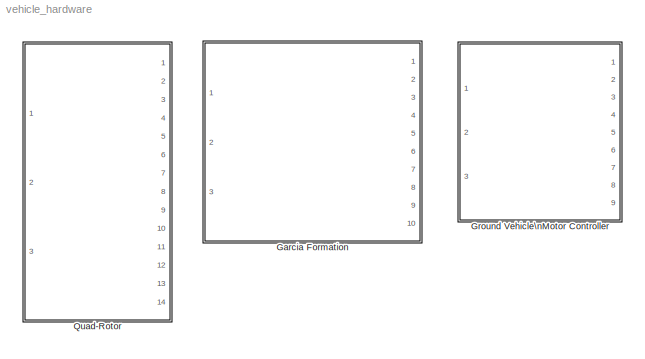
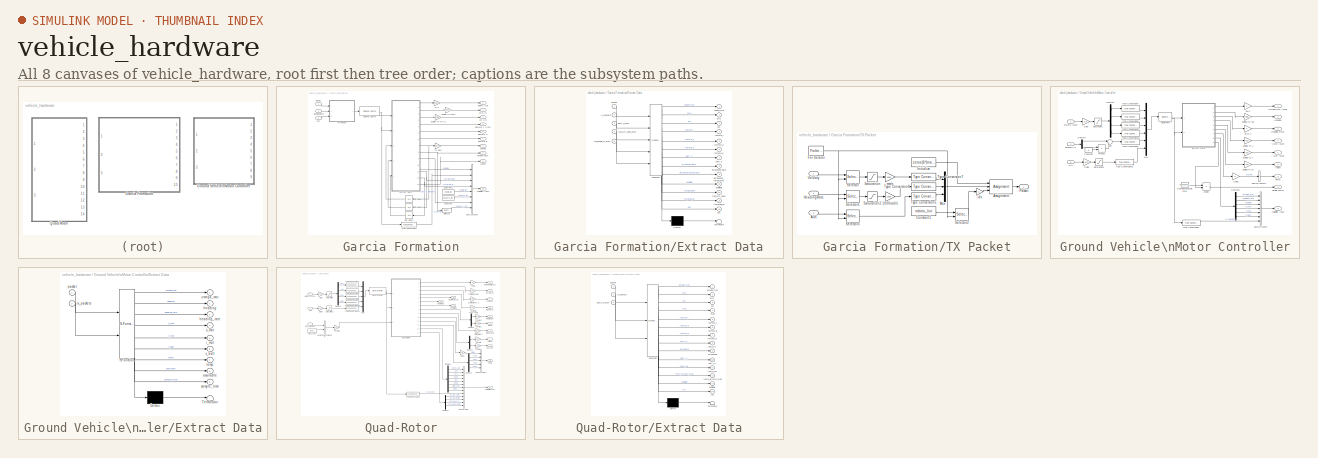
[diagram: thumbnail index - all 8 canvases of the model, root first then tree order]
MODEL vehicle_hardware
KIND model
BLOCK [SubSystem] Garcia Formation
  FunctionWithSeparateData = off
  MaskCallbackString = |||start = 3;\nUAVdesign_net_generic_comm_callback(gcb, 1, start)|||||||
  MaskDescription = Hardware interface for the Garcia & Track robot formation.\n\nIf Timeout is zero, the block will not delay the simulation until the data packets arrive. If Timeout is positive and no packet arrives until it elapses, an error will be generated and the simulation will stop.
  MaskDisplay = text(0.1, 0.30, ['sensors: ' num2str(sensors_list)])\ntext(0.1, 0.40, ['robots: ' num2str(robots_list)])\ntext(0.1, 0.70, com_port)\ntext(0.1, 0.60, host_name)
  MaskEnableString = on,on,on,on,on,on,on,on,on,on,on
  MaskHideContents = off
  MaskIconFrame = on
  MaskIconOpaque = off
  MaskIconRotate = none
  MaskIconUnits = normalized
  MaskInitialization = start = 3;\na=get_param([gcb '/Generic Comm'], 'MaskStyles');\nb=get_param(gcb, 'MaskStyles');\nb{start+1}=a{1};\nset_param(gcb, 'MaskStyles', b);\n\na=get_param(gcb, 'MaskValues');\nb=get_param([gcb '/Generic Comm'], 'MaskValues');\nb{1}=a{start+1};\nset_param([gcb '/Generic Comm'], 'MaskValues', b);
  MaskPortRotate = default
  MaskPromptString = List of robots|List of ultrasound+radio sensors|Use ultrasound sensors|Device Type|COM port (string between commas, e.g. 'COM4')|Baud Rate|Host Name (string between commas, e.g. '192.168.1.10')|Remote UDP port|Local UDP port|Timeout (sec)|Sample Time
  MaskSelfModifiable = on
  MaskStyleString = edit,edit,checkbox,popup(COM port|UDP port),edit,edit,edit,edit,edit,edit,edit
  MaskToolTipString = on,on,on,on,on,on,on,on,on,on,on
  MaskTunableValueString = off,off,off,off,off,off,off,off,off,off,off
  MaskType = GarciaFormation
  MaskValueString = [0 1 2 3]|[0 1 2 3]|off|UDP port|'COM4'|115200|'192.168.1.10'|60500|60500|1|1/20
  MaskVariables = robots_list=@1;sensors_list=@2;use_sensors=@3;devicetype=@4;com_port=@5;baud=@6;host_name=@7;remote_port=@8;local_port=@9;timeout=@10;sample_time=@11;
  MaskVisibilityString = on,on,on,on,off,off,on,on,on,on,on
  MinAlgLoopOccurrences = off
  Opaque = off
  Ports = [3, 10]
  PropExecContextOutsideSubsystem = off
  RTWSystemCode = Auto
  RequestExecContextInheritance = off
  SID = 252
  ShowPortLabels = FromPortBlockName
BLOCK [Inport] Garcia Formation/AUX
  IconDisplay = Port number
  Port = 3
  SID = 252:1352
  SignalType = real
BLOCK [Outport] Garcia Formation/AUXout
  IconDisplay = Port number
  Port = 5
  SID = 252:1353
  SignalType = real
BLOCK [Outport] Garcia Formation/Acc [xy]
  IconDisplay = Port number
  Port = 3
  SID = 252:457
  SignalType = real
BLOCK [Outport] Garcia Formation/Availability (bus)
  IconDisplay = Port number
  Port = 10
  SID = 252:463
  SignalType = real
BLOCK [BusCreator] Garcia Formation/Bus\nCreator
  DisplayOption = bar
  Inputs = 8
  Ports = [8, 1]
  SID = 252:422
BLOCK [Constant] Garcia Formation/Constant
  SID = 252:423
  Value = sensors_list
BLOCK [Constant] Garcia Formation/Constant1
  SID = 252:424
  Value = robots_list
BLOCK [SubSystem] Garcia Formation/Extract Data
  ErrorFcn = Stateflow.Translate.translate
  FunctionWithSeparateData = off
  MaskDescription = Embedded MATLAB block
  MaskDisplay = bgColor = Simulink.Root.ColorString2Rgb(get_param(gcbh, 'BackgroundColor')); image(imread('private/eml_membrane_16.png','png','BackgroundColor',bgColor(1:3)),'center'); disp([10 10 'unpack']);  <repeated x3 — deduplicated; at blocks: Extract Data>
  MaskHideContents = off
  MaskIconFrame = on
  MaskIconOpaque = off
  MaskIconRotate = none
  MaskIconUnits = normalized
  MaskPortRotate = default
  MaskSelfModifiable = on
  MaskType = Stateflow
  MinAlgLoopOccurrences = off
  Opaque = off
  PermitHierarchicalResolution = ExplicitOnly
  Ports = [5, 13]
  PropExecContextOutsideSubsystem = off
  RTWSystemCode = Auto
  RequestExecContextInheritance = off
  SID = 252:425
  TreatAsAtomicUnit = on
BLOCK [Demux] Garcia Formation/Extract Data/ Demux 
  Outputs = 1
  Ports = [1, 1]
  SID = 252:425::40
BLOCK [S-Function] Garcia Formation/Extract Data/ SFunction 
  EnableBusSupport = off
  FunctionName = sf_sfun
  Parameters = robots_list,sensors_list,use_sensors
  PortCounts = [5 14]
  Ports = [5, 14]
  SID = 252:425::39
  Tag = Stateflow S-Function vehicle_hardware 1
BLOCK [Terminator] Garcia Formation/Extract Data/ Terminator 
  SID = 252:425::42
BLOCK [Outport] Garcia Formation/Extract Data/acc
  IconDisplay = Port number
  Port = 3
  SID = 252:425::11
BLOCK [Outport] Garcia Formation/Extract Data/aux
  IconDisplay = Port number
  Port = 13
  SID = 252:425::30
BLOCK [Outport] Garcia Formation/Extract Data/available
  IconDisplay = Port number
  Port = 10
  SID = 252:425::18
BLOCK [Outport] Garcia Formation/Extract Data/batt_V
  IconDisplay = Port number
  Port = 7
  SID = 252:425::15
BLOCK [Inport] Garcia Formation/Extract Data/batt_V_prev
  IconDisplay = Port number
  Port = 3
  SID = 252:425::3
BLOCK [Outport] Garcia Formation/Extract Data/gyro
  IconDisplay = Port number
  Port = 2
  SID = 252:425::10
BLOCK [Inport] Garcia Formation/Extract Data/packet
  IconDisplay = Port number
  SID = 252:425::1
BLOCK [Outport] Garcia Formation/Extract Data/remote_b
  IconDisplay = Port number
  Port = 6
  SID = 252:425::14
BLOCK [Outport] Garcia Formation/Extract Data/remote_j
  IconDisplay = Port number
  Port = 4
  SID = 252:425::12
BLOCK [Outport] Garcia Formation/Extract Data/remote_q
  IconDisplay = Port number
  Port = 5
  SID = 252:425::13
BLOCK [Outport] Garcia Formation/Extract Data/rssi_BASE_qr
  IconDisplay = Port number
  Port = 12
  SID = 252:425::20
BLOCK [Inport] Garcia Formation/Extract Data/rssi_BASE_qr_prev
  IconDisplay = Port number
  Port = 5
  SID = 252:425::5
BLOCK [Outport] Garcia Formation/Extract Data/rssi_QR_base
  IconDisplay = Port number
  Port = 11
  SID = 252:425::19
BLOCK [Inport] Garcia Formation/Extract Data/rssi_QR_base_prev
  IconDisplay = Port number
  Port = 4
  SID = 252:425::4
BLOCK [Inport] Garcia Formation/Extract Data/rx_packets
  IconDisplay = Port number
  Port = 2
  SID = 252:425::2
BLOCK [Outport] Garcia Formation/Extract Data/speed_mot
  IconDisplay = Port number
  SID = 252:425::9
BLOCK [Outport] Garcia Formation/Extract Data/ultrasound_data
  IconDisplay = Port number
  Port = 8
  SID = 252:425::16
BLOCK [Outport] Garcia Formation/Extract Data/ultrasound_timestamp
  IconDisplay = Port number
  Port = 9
  SID = 252:425::17
BLOCK [Reference] Garcia Formation/Generic Comm  REF=UAVdesign_net/Hardware/Generic Comm
  FunctionWithSeparateData = off
  GeneratePreprocessorConditionals = off
  Ports = [1, 2]
  RTWMemSecDataConstants = Inherit from model
  RTWMemSecDataInternal = Inherit from model
  RTWMemSecDataParameters = Inherit from model
  RTWMemSecFuncExecute = Inherit from model
  RTWMemSecFuncInitTerm = Inherit from model
  SID = 252:1346
  ShowPortLabels = FromPortIcon
  SourceBlock = UAVdesign_net/Hardware/Generic Comm
  SourceType = GenericComm
  SystemSampleTime = -1
  baud = baud
  com_port = com_port
  devicetype = UDP port
  handshake = on
  host_name = host_name
  local_port = local_port
  remote_port = remote_port
  rx_size = (max(robots_list)+1) * 16 + 18 + (4 + 17*8)*use_sensors
  sample_time = sample_time
  timeout = timeout
BLOCK [Outport] Garcia Formation/Gyro [z]
  IconDisplay = Port number
  Port = 2
  SID = 252:456
  SignalType = real
BLOCK [Inport] Garcia Formation/HeadingRate
  IconDisplay = Port number
  Port = 2
  SID = 252:421
  SignalType = real
BLOCK [Outport] Garcia Formation/Position Data
  IconDisplay = Port number
  Port = 9
  SID = 252:462
  SignalType = real
BLOCK [Outport] Garcia Formation/Remote B
  IconDisplay = Port number
  Port = 7
  SID = 252:460
  SignalType = real
BLOCK [Outport] Garcia Formation/Remote J [yrpt]
  IconDisplay = Port number
  Port = 6
  SID = 252:459
  SignalType = real
BLOCK [Outport] Garcia Formation/Remote Q
  IconDisplay = Port number
  Port = 8
  SID = 252:461
  SignalType = real
BLOCK [Gain] Garcia Formation/Scaling to m*s-2
  Gain = 9.81/5440/3
  OutDataTypeStr = Inherit: Inherit via internal rule
  ParamDataTypeStr = Inherit: Inherit via internal rule
  SID = 252:426
  SaturateOnIntegerOverflow = off
BLOCK [Gain] Garcia Formation/Scaling to rad//s
  Gain = 0.2439*pi/180
  OutDataTypeStr = Inherit: Inherit via internal rule
  ParamDataTypeStr = Inherit: Inherit via internal rule
  SID = 252:427
  SaturateOnIntegerOverflow = off
BLOCK [Selector] Garcia Formation/Selector
  IndexOptions = Index vector (dialog)
  Indices = [9*(0:(length(sensors_list)-1)*use_sensors)+9*use_sensors+(1-use_sensors)]
  InputPortWidth = 9*length(sensors_list)*use_sensors + (1-use_sensors)*1
  OutputSizes = 1
  Ports = [1, 1]
  SID = 252:428
BLOCK [SubSystem] Garcia Formation/TX Packet
  FunctionWithSeparateData = off
  MaskHideContents = off
  MinAlgLoopOccurrences = off
  Opaque = off
  Ports = [3, 1]
  PropExecContextOutsideSubsystem = off
  RTWSystemCode = Auto
  RequestExecContextInheritance = off
  SID = 252:430
  TreatAsAtomicUnit = on
BLOCK [Gain] Garcia Formation/TX Packet/1000rad//s
  Gain = 1000
  OutDataTypeStr = Inherit: Inherit via internal rule
  ParamDataTypeStr = Inherit: Inherit via internal rule
  SID = 252:433
  SaturateOnIntegerOverflow = off
BLOCK [Inport] Garcia Formation/TX Packet/AUX
  IconDisplay = Port number
  OutDataTypeStr = uint16
  Port = 3
  SID = 252:1348
  SignalType = real
BLOCK [Assignment] Garcia Formation/TX Packet/Assignment
  IndexMode = Zero-based
  IndexOptions = Starting index (port)
  Indices = 1
  OutputSizes = num_robots * 4
  Ports = [3, 1]
  SID = 252:434
BLOCK [Constant] Garcia Formation/TX Packet/Constant1
  OutDataTypeStr = uint32
  SID = 252:435
  Value = robots_list
BLOCK [ForIterator] Garcia Formation/TX Packet/For Iterator
  IndexMode = Zero-based
  IterationLimit = length(robots_list)
  Ports = [0, 1]
  SID = 252:436
BLOCK [Inport] Garcia Formation/TX Packet/HeadingRate
  IconDisplay = Port number
  Port = 2
  SID = 252:432
  SignalType = real
BLOCK [Constant] Garcia Formation/TX Packet/Initialize
  OutDataTypeStr = uint8
  SID = 252:437
  Value = zeros(6*(max(robots_list)+1), 1)
BLOCK [Mux] Garcia Formation/TX Packet/Mux
  DisplayOption = bar
  Inputs = 3
  Ports = [3, 1]
  SID = 252:438
BLOCK [Outport] Garcia Formation/TX Packet/Packet
  IconDisplay = Port number
  SID = 252:448
BLOCK [Saturate] Garcia Formation/TX Packet/Saturation
  InputPortMap = u0
  LowerLimit = -1
  Ports = [1, 1]
  SID = 252:439
  UpperLimit = 1
BLOCK [Saturate] Garcia Formation/TX Packet/Saturation2
  InputPortMap = u0
  LowerLimit = -2*pi
  Ports = [1, 1]
  SID = 252:440
  UpperLimit = 2*pi
BLOCK [Selector] Garcia Formation/TX Packet/Selector
  IndexMode = Zero-based
  IndexOptions = Starting index (port)
  Indices = [1 3]
  InputPortWidth = length(robots_list)
  OutputSizes = 1
  Ports = [2, 1]
  SID = 252:441
BLOCK [Selector] Garcia Formation/TX Packet/Selector1
  IndexMode = Zero-based
  IndexOptions = Starting index (port)
  Indices = [1 3]
  InputPortWidth = length(robots_list)
  OutputSizes = 1
  Ports = [2, 1]
  SID = 252:442
BLOCK [Selector] Garcia Formation/TX Packet/Selector2
  IndexMode = Zero-based
  IndexOptions = Starting index (port)
  Indices = [1 3]
  InputPortWidth = length(robots_list)
  OutputSizes = 1
  Ports = [2, 1]
  SID = 252:443
BLOCK [Selector] Garcia Formation/TX Packet/Selector3
  IndexMode = Zero-based
  IndexOptions = Starting index (port)
  Indices = [1 3]
  InputPortWidth = length(robots_list)
  OutputSizes = 1
  Ports = [2, 1]
  SID = 252:1349
BLOCK [Reference] Garcia Formation/TX Packet/Type Conversion1  REF=UAVdesign_net/Hardware/Type Conversion
  Ports = [1, 1]
  SID = 252:1351
  SourceBlock = UAVdesign_net/Hardware/Type Conversion
  SourceType = TypeConversion
  indim = 1
  intype = uint16
  outdim = 2
  outtype = uint8
  signextend = off
BLOCK [Reference] Garcia Formation/TX Packet/Type Conversion7  REF=UAVdesign_net/Hardware/Type Conversion
  Ports = [1, 1]
  SID = 252:444
  SourceBlock = UAVdesign_net/Hardware/Type Conversion
  SourceType = TypeConversion
  indim = 1
  intype = double
  outdim = 2
  outtype = uint8
  signextend = off
BLOCK [Reference] Garcia Formation/TX Packet/Type Conversion8  REF=UAVdesign_net/Hardware/Type Conversion
  Ports = [1, 1]
  SID = 252:445
  SourceBlock = UAVdesign_net/Hardware/Type Conversion
  SourceType = TypeConversion
  indim = 1
  intype = double
  outdim = 2
  outtype = uint8
  signextend = off
BLOCK [Inport] Garcia Formation/TX Packet/Velocity
  IconDisplay = Port number
  SID = 252:431
  SignalType = real
BLOCK [Gain] Garcia Formation/TX Packet/idx
  Gain = 6
  OutDataTypeStr = int32
  ParamDataTypeStr = int32
  SID = 252:446
  SaturateOnIntegerOverflow = off
BLOCK [Gain] Garcia Formation/TX Packet/mm//s
  Gain = 1000
  OutDataTypeStr = Inherit: Inherit via internal rule
  ParamDataTypeStr = Inherit: Inherit via internal rule
  SID = 252:447
  SaturateOnIntegerOverflow = off
BLOCK [Gain] Garcia Formation/To volts
  Gain = 1/100
  OutDataTypeStr = Inherit: Inherit via internal rule
  ParamDataTypeStr = Inherit: Inherit via internal rule
  SID = 252:449
  SaturateOnIntegerOverflow = off
BLOCK [Reference] Garcia Formation/Type Conversion1  REF=UAVdesign_net/Hardware/Type Conversion
  Ports = [1, 1]
  SID = 252:450
  SourceBlock = UAVdesign_net/Hardware/Type Conversion
  SourceType = TypeConversion
  indim = 1
  intype = uint32
  outdim = 1
  outtype = double
  signextend = off
BLOCK [UnitDelay] Garcia Formation/Unit Delay1
  SID = 252:451
  SampleTime = -1
  X0 = -100*ones(length(robots_list), 1)
BLOCK [UnitDelay] Garcia Formation/Unit Delay2
  SID = 252:452
  SampleTime = -1
  X0 = zeros(length(robots_list), 1)
BLOCK [UnitDelay] Garcia Formation/Unit Delay5
  SID = 252:453
  SampleTime = -1
  X0 = -100*ones(length(robots_list), 1)
BLOCK [Inport] Garcia Formation/Velocity
  IconDisplay = Port number
  SID = 252:420
  SignalType = real
BLOCK [Outport] Garcia Formation/Velocity [LR]
  IconDisplay = Port number
  SID = 252:455
  SignalType = real
BLOCK [Outport] Garcia Formation/Voltage
  IconDisplay = Port number
  Port = 4
  SID = 252:458
  SignalType = real
BLOCK [Gain] Garcia Formation/m//s
  Gain = 0.001
  OutDataTypeStr = Inherit: Inherit via internal rule
  ParamDataTypeStr = Inherit: Inherit via internal rule
  SID = 252:454
  SaturateOnIntegerOverflow = off
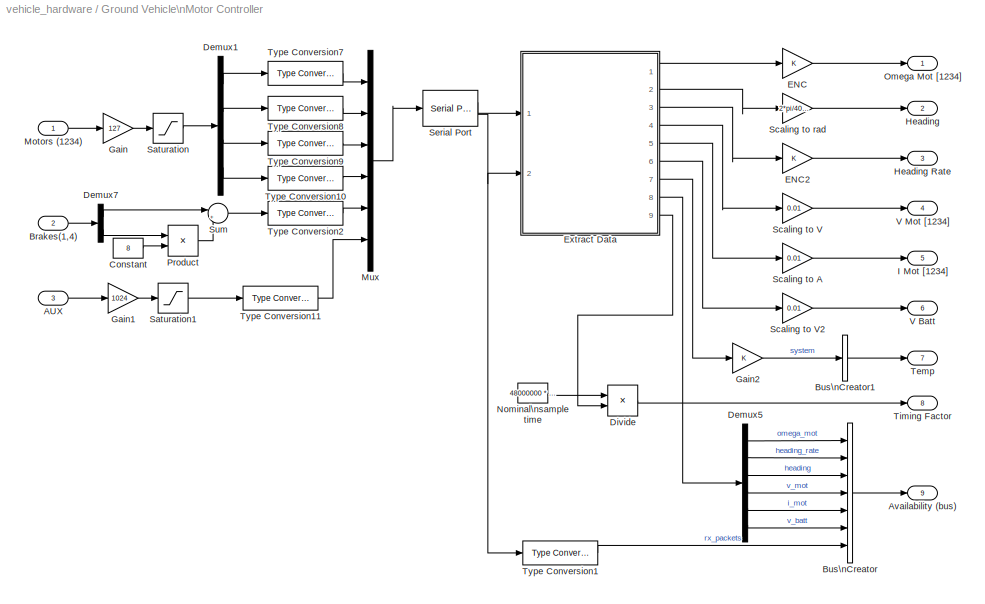
BLOCK [SubSystem] Ground Vehicle\nMotor Controller
  FunctionWithSeparateData = off
  MaskCallbackString = ||
  MaskDescription = Hardware interface for the Ground Vehicle Motor Controller.\n\nCOM port has to be a string including commas, e.g. 'COM4'.\nIf Timeout is zero, the block will not delay the simulation until the data packets arrive. If Timeout is positive and no packet arrives until it elapses, an error will be generated and the simulation will stop.
  MaskDisplay = disp(com_port)
  MaskEnableString = on,on,on
  MaskHideContents = off
  MaskIconFrame = on
  MaskIconOpaque = off
  MaskIconRotate = none
  MaskIconUnits = autoscale
  MaskPortRotate = default
  MaskPromptString = COM port|Timeout (sec)|Sample Time
  MaskStyleString = edit,edit,edit
  MaskToolTipString = on,on,on
  MaskTunableValueString = off,off,off
  MaskType = GroundVehicle
  MaskValueString = 'COM4'|1|1/100
  MaskVariables = com_port=@1;timeout=@2;sample_time=@3;
  MaskVisibilityString = on,on,on
  MinAlgLoopOccurrences = off
  Opaque = off
  Ports = [3, 9]
  PropExecContextOutsideSubsystem = off
  RTWSystemCode = Auto
  RequestExecContextInheritance = off
  SID = 253
  ShowPortLabels = FromPortBlockName
BLOCK [Inport] Ground Vehicle\nMotor Controller/AUX
  IconDisplay = Port number
  Port = 3
  SID = 256
  SignalType = real
BLOCK [Outport] Ground Vehicle\nMotor Controller/Availability (bus)
  IconDisplay = Port number
  Port = 9
  SID = 296
  SignalType = real
BLOCK [Inport] Ground Vehicle\nMotor Controller/Brakes(1,4)
  IconDisplay = Port number
  OutDataTypeStr = boolean
  Port = 2
  PortDimensions = 2
  SID = 255
  SignalType = real
BLOCK [BusCreator] Ground Vehicle\nMotor Controller/Bus\nCreator
  DisplayOption = bar
  Inputs = 7
  Ports = [7, 1]
  SID = 257
BLOCK [BusCreator] Ground Vehicle\nMotor Controller/Bus\nCreator1
  DisplayOption = bar
  Inputs = 1
  Ports = [1, 1]
  SID = 258
BLOCK [Constant] Ground Vehicle\nMotor Controller/Constant
  SID = 259
  Value = 8
BLOCK [Demux] Ground Vehicle\nMotor Controller/Demux1
  DisplayOption = bar
  Ports = [1, 4]
  SID = 260
BLOCK [Demux] Ground Vehicle\nMotor Controller/Demux5
  DisplayOption = bar
  Outputs = [4 1 1 4 4 1]
  Ports = [1, 6]
  SID = 261
BLOCK [Demux] Ground Vehicle\nMotor Controller/Demux7
  DisplayOption = bar
  Outputs = 2
  Ports = [1, 2]
  SID = 262
BLOCK [Product] Ground Vehicle\nMotor Controller/Divide
  InputSameDT = off
  Inputs = */
  OutDataTypeStr = Inherit: Inherit via internal rule
  Ports = [2, 1]
  RndMeth = Floor
  SID = 263
  SaturateOnIntegerOverflow = off
BLOCK [Gain] Ground Vehicle\nMotor Controller/ENC
  OutDataTypeStr = Inherit: Inherit via internal rule
  ParamDataTypeStr = Inherit: Inherit via internal rule
  SID = 264
  SaturateOnIntegerOverflow = off
BLOCK [Gain] Ground Vehicle\nMotor Controller/ENC2
  OutDataTypeStr = Inherit: Inherit via internal rule
  ParamDataTypeStr = Inherit: Inherit via internal rule
  SID = 265
  SaturateOnIntegerOverflow = off
BLOCK [SubSystem] Ground Vehicle\nMotor Controller/Extract Data
  ErrorFcn = Stateflow.Translate.translate
  FunctionWithSeparateData = off
  MaskDescription = Embedded MATLAB block
  MaskHideContents = off
  MaskIconFrame = on
  MaskIconOpaque = off
  MaskIconRotate = none
  MaskIconUnits = normalized
  MaskPortRotate = default
  MaskSelfModifiable = on
  MaskType = Stateflow
  MinAlgLoopOccurrences = off
  Opaque = off
  PermitHierarchicalResolution = ExplicitOnly
  Ports = [2, 9]
  PropExecContextOutsideSubsystem = off
  RTWSystemCode = Auto
  RequestExecContextInheritance = off
  SID = 266
  TreatAsAtomicUnit = on
BLOCK [Demux] Ground Vehicle\nMotor Controller/Extract Data/ Demux 
  Outputs = 1
  Ports = [1, 1]
  SID = 266::28
BLOCK [S-Function] Ground Vehicle\nMotor Controller/Extract Data/ SFunction 
  EnableBusSupport = off
  FunctionName = sf_sfun
  PortCounts = [2 10]
  Ports = [2, 10]
  SID = 266::27
  Tag = Stateflow S-Function vehicle_hardware 3
BLOCK [Terminator] Ground Vehicle\nMotor Controller/Extract Data/ Terminator 
  SID = 266::30
BLOCK [Outport] Ground Vehicle\nMotor Controller/Extract Data/available
  IconDisplay = Port number
  Port = 8
  SID = 266::13
BLOCK [Outport] Ground Vehicle\nMotor Controller/Extract Data/heading
  IconDisplay = Port number
  Port = 2
  SID = 266::7
BLOCK [Outport] Ground Vehicle\nMotor Controller/Extract Data/heading_rate
  IconDisplay = Port number
  Port = 3
  SID = 266::8
BLOCK [Outport] Ground Vehicle\nMotor Controller/Extract Data/i_mot
  IconDisplay = Port number
  Port = 5
  SID = 266::10
BLOCK [Outport] Ground Vehicle\nMotor Controller/Extract Data/omega_mot
  IconDisplay = Port number
  SID = 266::6
BLOCK [Inport] Ground Vehicle\nMotor Controller/Extract Data/packet
  IconDisplay = Port number
  SID = 266::1
BLOCK [Inport] Ground Vehicle\nMotor Controller/Extract Data/rx_packets
  IconDisplay = Port number
  Port = 2
  SID = 266::2
BLOCK [Outport] Ground Vehicle\nMotor Controller/Extract Data/sample_time
  IconDisplay = Port number
  Port = 9
  SID = 266::14
BLOCK [Outport] Ground Vehicle\nMotor Controller/Extract Data/temp
  IconDisplay = Port number
  Port = 7
  SID = 266::12
BLOCK [Outport] Ground Vehicle\nMotor Controller/Extract Data/v_batt
  IconDisplay = Port number
  Port = 6
  SID = 266::11
BLOCK [Outport] Ground Vehicle\nMotor Controller/Extract Data/v_mot
  IconDisplay = Port number
  Port = 4
  SID = 266::9
BLOCK [Gain] Ground Vehicle\nMotor Controller/Gain
  Gain = 127
  OutDataTypeStr = Inherit: Inherit via internal rule
  ParamDataTypeStr = Inherit: Inherit via internal rule
  SID = 267
  SaturateOnIntegerOverflow = off
BLOCK [Gain] Ground Vehicle\nMotor Controller/Gain1
  Gain = 1024
  OutDataTypeStr = Inherit: Inherit via internal rule
  ParamDataTypeStr = Inherit: Inherit via internal rule
  SID = 268
  SaturateOnIntegerOverflow = off
BLOCK [Gain] Ground Vehicle\nMotor Controller/Gain2
  OutDataTypeStr = Inherit: Inherit via internal rule
  ParamDataTypeStr = Inherit: Inherit via internal rule
  SID = 269
  SaturateOnIntegerOverflow = off
BLOCK [Outport] Ground Vehicle\nMotor Controller/Heading
  IconDisplay = Port number
  Port = 2
  SID = 289
  SignalType = real
BLOCK [Outport] Ground Vehicle\nMotor Controller/Heading Rate
  IconDisplay = Port number
  Port = 3
  SID = 290
  SignalType = real
BLOCK [Outport] Ground Vehicle\nMotor Controller/I Mot [1234]
  IconDisplay = Port number
  Port = 5
  SID = 292
  SignalType = real
BLOCK [Inport] Ground Vehicle\nMotor Controller/Motors (1234)
  IconDisplay = Port number
  SID = 254
  SignalType = real
BLOCK [Mux] Ground Vehicle\nMotor Controller/Mux
  DisplayOption = bar
  Inputs = 6
  Ports = [6, 1]
  SID = 270
BLOCK [Constant] Ground Vehicle\nMotor Controller/Nominal\nsample time
  SID = 271
  Value = 48000000 * sample_time
BLOCK [Outport] Ground Vehicle\nMotor Controller/Omega Mot [1234]
  IconDisplay = Port number
  SID = 288
  SignalType = real
BLOCK [Product] Ground Vehicle\nMotor Controller/Product
  InputSameDT = off
  OutDataTypeStr = Inherit: Inherit via internal rule
  Ports = [2, 1]
  SID = 272
  SaturateOnIntegerOverflow = off
BLOCK [Saturate] Ground Vehicle\nMotor Controller/Saturation
  InputPortMap = u0
  LowerLimit = -127
  Ports = [1, 1]
  SID = 273
  UpperLimit = 127
BLOCK [Saturate] Ground Vehicle\nMotor Controller/Saturation1
  InputPortMap = u0
  LowerLimit = 0
  Ports = [1, 1]
  SID = 274
  UpperLimit = 1023
BLOCK [Gain] Ground Vehicle\nMotor Controller/Scaling to A
  Gain = 0.01
  OutDataTypeStr = Inherit: Inherit via internal rule
  ParamDataTypeStr = Inherit: Inherit via internal rule
  SID = 275
  SaturateOnIntegerOverflow = off
BLOCK [Gain] Ground Vehicle\nMotor Controller/Scaling to V
  Gain = 0.01
  OutDataTypeStr = Inherit: Inherit via internal rule
  ParamDataTypeStr = Inherit: Inherit via internal rule
  SID = 276
  SaturateOnIntegerOverflow = off
BLOCK [Gain] Ground Vehicle\nMotor Controller/Scaling to V2
  Gain = 0.01
  OutDataTypeStr = Inherit: Inherit via internal rule
  ParamDataTypeStr = Inherit: Inherit via internal rule
  SID = 277
  SaturateOnIntegerOverflow = off
BLOCK [Gain] Ground Vehicle\nMotor Controller/Scaling to rad
  Gain = 2*pi/4000
  OutDataTypeStr = Inherit: Inherit via internal rule
  ParamDataTypeStr = Inherit: Inherit via internal rule
  SID = 278
  SaturateOnIntegerOverflow = off
BLOCK [Reference] Ground Vehicle\nMotor Controller/Serial Port  REF=UAVdesign_net/Hardware/Serial Port
  Ports = [1, 2]
  SID = 279
  SourceBlock = UAVdesign_net/Hardware/Serial Port
  SourceType = SerialPort
  baud_rate = 115200
  num_packets_overrun = off
  num_packets_received = on
  port = com_port
  receive = 56
  rx_enable = on
  st = sample_time
  timeout = timeout
  tx_enable = on
BLOCK [Sum] Ground Vehicle\nMotor Controller/Sum
  IconShape = round
  InputSameDT = off
  Inputs = |++
  OutDataTypeStr = uint16
  Ports = [2, 1]
  SID = 280
  SaturateOnIntegerOverflow = off
BLOCK [Outport] Ground Vehicle\nMotor Controller/Temp
  IconDisplay = Port number
  Port = 7
  SID = 294
  SignalType = real
BLOCK [Outport] Ground Vehicle\nMotor Controller/Timing Factor
  IconDisplay = Port number
  Port = 8
  SID = 295
  SignalType = real
BLOCK [Reference] Ground Vehicle\nMotor Controller/Type Conversion1  REF=UAVdesign_net/Hardware/Type Conversion
  Ports = [1, 1]
  SID = 281
  SourceBlock = UAVdesign_net/Hardware/Type Conversion
  SourceType = TypeConversion
  indim = 1
  intype = uint32
  outdim = 1
  outtype = double
  signextend = off
BLOCK [Reference] Ground Vehicle\nMotor Controller/Type Conversion10  REF=UAVdesign_net/Hardware/Type Conversion
  Ports = [1, 1]
  SID = 282
  SourceBlock = UAVdesign_net/Hardware/Type Conversion
  SourceType = TypeConversion
  indim = 1
  intype = double
  outdim = 2
  outtype = uint8
  signextend = off
BLOCK [Reference] Ground Vehicle\nMotor Controller/Type Conversion11  REF=UAVdesign_net/Hardware/Type Conversion
  Ports = [1, 1]
  SID = 283
  SourceBlock = UAVdesign_net/Hardware/Type Conversion
  SourceType = TypeConversion
  indim = 1
  intype = double
  outdim = 2
  outtype = uint8
  signextend = off
BLOCK [Reference] Ground Vehicle\nMotor Controller/Type Conversion2  REF=UAVdesign_net/Hardware/Type Conversion
  Ports = [1, 1]
  SID = 284
  SourceBlock = UAVdesign_net/Hardware/Type Conversion
  SourceType = TypeConversion
  indim = 1
  intype = uint16
  outdim = 2
  outtype = uint8
  signextend = off
BLOCK [Reference] Ground Vehicle\nMotor Controller/Type Conversion7  REF=UAVdesign_net/Hardware/Type Conversion
  Ports = [1, 1]
  SID = 285
  SourceBlock = UAVdesign_net/Hardware/Type Conversion
  SourceType = TypeConversion
  indim = 1
  intype = double
  outdim = 2
  outtype = uint8
  signextend = off
BLOCK [Reference] Ground Vehicle\nMotor Controller/Type Conversion8  REF=UAVdesign_net/Hardware/Type Conversion
  Ports = [1, 1]
  SID = 286
  SourceBlock = UAVdesign_net/Hardware/Type Conversion
  SourceType = TypeConversion
  indim = 1
  intype = double
  outdim = 2
  outtype = uint8
  signextend = off
BLOCK [Reference] Ground Vehicle\nMotor Controller/Type Conversion9  REF=UAVdesign_net/Hardware/Type Conversion
  Ports = [1, 1]
  SID = 287
  SourceBlock = UAVdesign_net/Hardware/Type Conversion
  SourceType = TypeConversion
  indim = 1
  intype = double
  outdim = 2
  outtype = uint8
  signextend = off
BLOCK [Outport] Ground Vehicle\nMotor Controller/V Batt
  IconDisplay = Port number
  Port = 6
  SID = 293
  SignalType = real
BLOCK [Outport] Ground Vehicle\nMotor Controller/V Mot [1234]
  IconDisplay = Port number
  Port = 4
  SID = 291
  SignalType = real
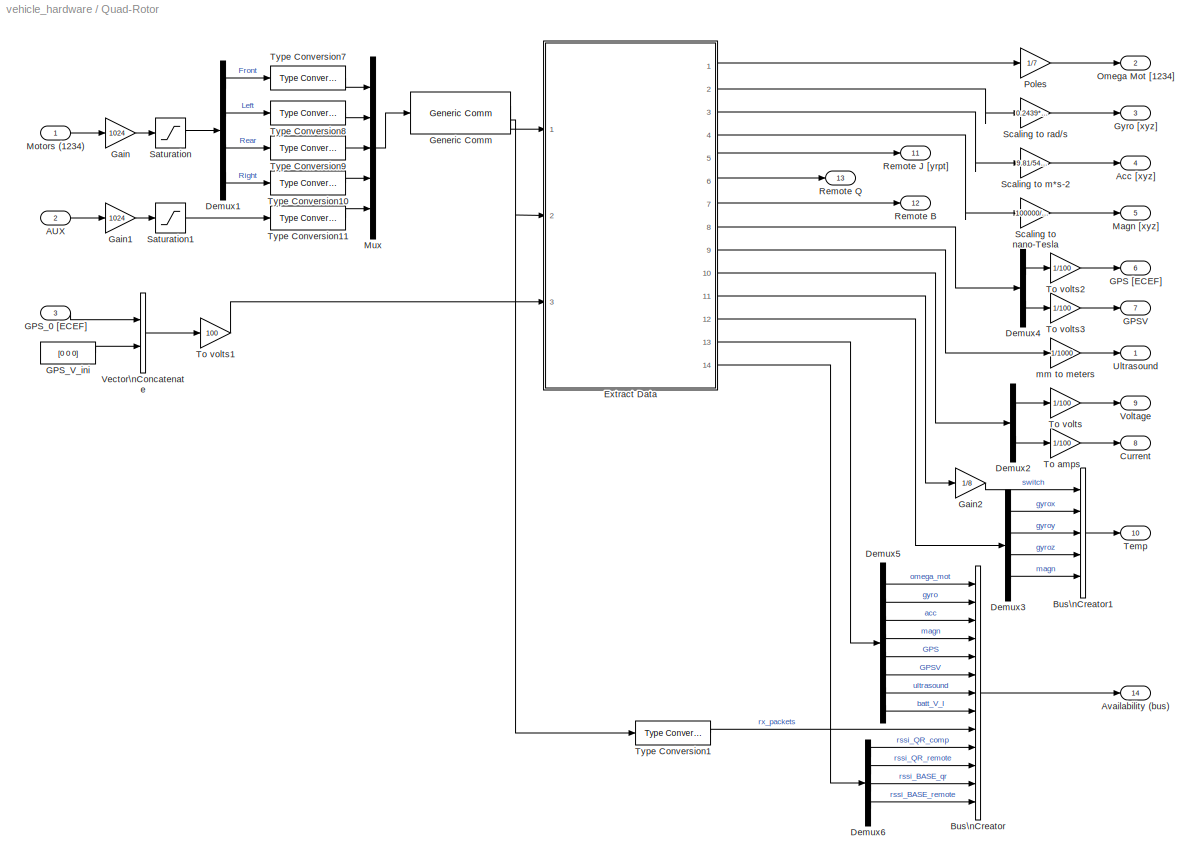
BLOCK [SubSystem] Quad-Rotor
  FunctionWithSeparateData = off
  MaskCallbackString = start = 0;\nUAVdesign_net_generic_comm_callback(gcb, 1, start)|||||||
  MaskDescription = Hardware interface for the QuadRotor.\n\nCOM port has to be a string including commas, e.g. 'COM4'.\nIf Timeout is zero, the block will not delay the simulation until the data packets arrive. If Timeout is positive and no packet arrives until it elapses, an error will be generated and the simulation will stop.
  MaskDisplay = disp([com_port '\\n' host_name])
  MaskEnableString = on,on,on,on,on,on,on,on
  MaskHideContents = off
  MaskIconFrame = on
  MaskIconOpaque = off
  MaskIconRotate = none
  MaskIconUnits = autoscale
  MaskInitialization = start = 0;\na=get_param([gcb '/Generic Comm'], 'MaskStyles');\nb=get_param(gcb, 'MaskStyles');\nb{start+1}=a{1};\nset_param(gcb, 'MaskStyles', b);\n\na=get_param(gcb, 'MaskValues');\nb=get_param([gcb '/Generic Comm'], 'MaskValues');\nb{1}=a{start+1};\nset_param([gcb '/Generic Comm'], 'MaskValues', b);
  MaskPortRotate = default
  MaskPromptString = Device Type|COM port (string between commas, e.g. 'COM4')|Baud Rate|Host Name (string between commas, e.g. '192.168.1.10')|Remote UDP port|Local UDP port|Timeout (sec)|Sample Time
  MaskSelfModifiable = on
  MaskStyleString = popup(COM port|UDP port),edit,edit,edit,edit,edit,edit,edit
  MaskToolTipString = on,on,on,on,on,on,on,on
  MaskTunableValueString = off,off,off,off,off,off,off,off
  MaskType = QuadRotor
  MaskValueString = UDP port|'COM4'|115200|'192.168.1.10'|60500|60500|1|1/50
  MaskVariables = devicetype=@1;com_port=@2;baud=@3;host_name=@4;remote_port=@5;local_port=@6;timeout=@7;sample_time=@8;
  MaskVisibilityString = on,off,off,on,on,on,on,on
  MinAlgLoopOccurrences = off
  Opaque = off
  Ports = [3, 14]
  PropExecContextOutsideSubsystem = off
  RTWSystemCode = Auto
  RequestExecContextInheritance = off
  SID = 297
  ShowPortLabels = FromPortBlockName
BLOCK [Inport] Quad-Rotor/AUX
  IconDisplay = Port number
  Port = 2
  SID = 297:562
  SignalType = real
BLOCK [Outport] Quad-Rotor/Acc [xyz]
  IconDisplay = Port number
  Port = 4
  SID = 297:607
  SignalType = real
BLOCK [Outport] Quad-Rotor/Availability (bus)
  IconDisplay = Port number
  Port = 14
  SID = 297:617
  SignalType = real
BLOCK [BusCreator] Quad-Rotor/Bus\nCreator
  DisplayOption = bar
  Inputs = 13
  Ports = [13, 1]
  SID = 297:564
BLOCK [BusCreator] Quad-Rotor/Bus\nCreator1
  DisplayOption = bar
  Inputs = 5
  Ports = [5, 1]
  SID = 297:565
BLOCK [Outport] Quad-Rotor/Current
  IconDisplay = Port number
  Port = 8
  SID = 297:611
  SignalType = real
BLOCK [Demux] Quad-Rotor/Demux1
  DisplayOption = bar
  Ports = [1, 4]
  SID = 297:566
BLOCK [Demux] Quad-Rotor/Demux2
  DisplayOption = bar
  Outputs = 2
  Ports = [1, 2]
  SID = 297:567
BLOCK [Demux] Quad-Rotor/Demux3
  DisplayOption = bar
  Ports = [1, 4]
  SID = 297:568
BLOCK [Demux] Quad-Rotor/Demux4
  DisplayOption = bar
  Outputs = 2
  Ports = [1, 2]
  SID = 297:569
BLOCK [Demux] Quad-Rotor/Demux5
  DisplayOption = bar
  Outputs = [4 3 3 3 3 3 1 1]
  Ports = [1, 8]
  SID = 297:570
BLOCK [Demux] Quad-Rotor/Demux6
  DisplayOption = bar
  Ports = [1, 4]
  SID = 297:571
BLOCK [SubSystem] Quad-Rotor/Extract Data
  ErrorFcn = Stateflow.Translate.translate
  FunctionWithSeparateData = off
  MaskDescription = Embedded MATLAB block
  MaskHideContents = off
  MaskIconFrame = on
  MaskIconOpaque = off
  MaskIconRotate = none
  MaskIconUnits = normalized
  MaskPortRotate = default
  MaskSelfModifiable = on
  MaskType = Stateflow
  MinAlgLoopOccurrences = off
  Opaque = off
  PermitHierarchicalResolution = ExplicitOnly
  Ports = [3, 14]
  PropExecContextOutsideSubsystem = off
  RTWSystemCode = Auto
  RequestExecContextInheritance = off
  SID = 297:572
  TreatAsAtomicUnit = on
BLOCK [Demux] Quad-Rotor/Extract Data/ Demux 
  Outputs = 1
  Ports = [1, 1]
  SID = 297:572::43
BLOCK [S-Function] Quad-Rotor/Extract Data/ SFunction 
  EnableBusSupport = off
  FunctionName = sf_sfun
  PortCounts = [3 15]
  Ports = [3, 15]
  SID = 297:572::42
  Tag = Stateflow S-Function vehicle_hardware 4
BLOCK [Terminator] Quad-Rotor/Extract Data/ Terminator 
  SID = 297:572::45
BLOCK [Outport] Quad-Rotor/Extract Data/acc
  IconDisplay = Port number
  Port = 3
  SID = 297:572::14
BLOCK [Outport] Quad-Rotor/Extract Data/available
  IconDisplay = Port number
  Port = 13
  SID = 297:572::24
BLOCK [Outport] Quad-Rotor/Extract Data/batt_V_I
  IconDisplay = Port number
  Port = 10
  SID = 297:572::21
BLOCK [Outport] Quad-Rotor/Extract Data/gps_P_V
  IconDisplay = Port number
  Port = 8
  SID = 297:572::19
BLOCK [Inport] Quad-Rotor/Extract Data/gps_P_V_prev
  IconDisplay = Port number
  Port = 3
  SID = 297:572::3
BLOCK [Outport] Quad-Rotor/Extract Data/gyro
  IconDisplay = Port number
  Port = 2
  SID = 297:572::13
BLOCK [Outport] Quad-Rotor/Extract Data/mag
  IconDisplay = Port number
  Port = 4
  SID = 297:572::15
BLOCK [Outport] Quad-Rotor/Extract Data/omega_mot
  IconDisplay = Port number
  SID = 297:572::12
BLOCK [Inport] Quad-Rotor/Extract Data/packet
  IconDisplay = Port number
  SID = 297:572::1
BLOCK [Outport] Quad-Rotor/Extract Data/remote_b
  IconDisplay = Port number
  Port = 7
  SID = 297:572::18
BLOCK [Outport] Quad-Rotor/Extract Data/remote_j
  IconDisplay = Port number
  Port = 5
  SID = 297:572::16
BLOCK [Outport] Quad-Rotor/Extract Data/remote_q
  IconDisplay = Port number
  Port = 6
  SID = 297:572::17
BLOCK [Outport] Quad-Rotor/Extract Data/rssi
  IconDisplay = Port number
  Port = 14
  SID = 297:572::25
BLOCK [Inport] Quad-Rotor/Extract Data/rx_packets
  IconDisplay = Port number
  Port = 2
  SID = 297:572::2
BLOCK [Outport] Quad-Rotor/Extract Data/temp_gyroxyz_mag
  IconDisplay = Port number
  Port = 12
  SID = 297:572::23
BLOCK [Outport] Quad-Rotor/Extract Data/temp_sw
  IconDisplay = Port number
  Port = 11
  SID = 297:572::22
BLOCK [Outport] Quad-Rotor/Extract Data/ultrasound
  IconDisplay = Port number
  Port = 9
  SID = 297:572::20
BLOCK [Outport] Quad-Rotor/GPS [ECEF]
  IconDisplay = Port number
  Port = 6
  SID = 297:609
  SignalType = real
BLOCK [Outport] Quad-Rotor/GPSV
  IconDisplay = Port number
  Port = 7
  SID = 297:610
  SignalType = real
BLOCK [Inport] Quad-Rotor/GPS_0 [ECEF]
  IconDisplay = Port number
  Port = 3
  SID = 297:563
  SignalType = real
BLOCK [Constant] Quad-Rotor/GPS_V_ini
  SID = 297:573
  Value = [0 0 0]
BLOCK [Gain] Quad-Rotor/Gain
  Gain = 1024
  OutDataTypeStr = Inherit: Inherit via internal rule
  ParamDataTypeStr = Inherit: Inherit via internal rule
  SID = 297:574
  SaturateOnIntegerOverflow = off
BLOCK [Gain] Quad-Rotor/Gain1
  Gain = 1024
  OutDataTypeStr = Inherit: Inherit via internal rule
  ParamDataTypeStr = Inherit: Inherit via internal rule
  SID = 297:575
  SaturateOnIntegerOverflow = off
BLOCK [Gain] Quad-Rotor/Gain2
  Gain = 1/8
  OutDataTypeStr = Inherit: Inherit via internal rule
  ParamDataTypeStr = Inherit: Inherit via internal rule
  SID = 297:576
  SaturateOnIntegerOverflow = off
BLOCK [Reference] Quad-Rotor/Generic Comm  REF=UAVdesign_net/Hardware/Generic Comm
  FunctionWithSeparateData = off
  GeneratePreprocessorConditionals = off
  Ports = [1, 2]
  RTWMemSecDataConstants = Inherit from model
  RTWMemSecDataInternal = Inherit from model
  RTWMemSecDataParameters = Inherit from model
  RTWMemSecFuncExecute = Inherit from model
  RTWMemSecFuncInitTerm = Inherit from model
  SID = 297:1351
  ShowPortLabels = FromPortIcon
  SourceBlock = UAVdesign_net/Hardware/Generic Comm
  SourceType = GenericComm
  SystemSampleTime = -1
  baud = baud
  com_port = com_port
  devicetype = UDP port
  handshake = on
  host_name = host_name
  local_port = local_port
  remote_port = remote_port
  rx_size = 54
  sample_time = sample_time
  timeout = timeout
BLOCK [Outport] Quad-Rotor/Gyro [xyz]
  IconDisplay = Port number
  Port = 3
  SID = 297:606
  SignalType = real
BLOCK [Outport] Quad-Rotor/Magn [xyz]
  IconDisplay = Port number
  Port = 5
  SID = 297:608
  SignalType = real
BLOCK [Inport] Quad-Rotor/Motors (1234)
  IconDisplay = Port number
  SID = 297:561
  SignalType = real
BLOCK [Mux] Quad-Rotor/Mux
  DisplayOption = bar
  Inputs = 5
  Ports = [5, 1]
  SID = 297:577
BLOCK [Outport] Quad-Rotor/Omega Mot [1234]
  IconDisplay = Port number
  Port = 2
  SID = 297:605
  SignalType = real
BLOCK [Gain] Quad-Rotor/Poles
  Gain = 1/7
  OutDataTypeStr = Inherit: Inherit via internal rule
  ParamDataTypeStr = Inherit: Inherit via internal rule
  SID = 297:578
  SaturateOnIntegerOverflow = off
BLOCK [Outport] Quad-Rotor/Remote B
  IconDisplay = Port number
  Port = 12
  SID = 297:615
  SignalType = real
BLOCK [Outport] Quad-Rotor/Remote J [yrpt]
  IconDisplay = Port number
  Port = 11
  SID = 297:614
  SignalType = real
BLOCK [Outport] Quad-Rotor/Remote Q
  IconDisplay = Port number
  Port = 13
  SID = 297:616
  SignalType = real
BLOCK [Saturate] Quad-Rotor/Saturation
  InputPortMap = u0
  LowerLimit = 0
  Ports = [1, 1]
  SID = 297:579
  UpperLimit = 1023
BLOCK [Saturate] Quad-Rotor/Saturation1
  InputPortMap = u0
  LowerLimit = 0
  Ports = [1, 1]
  SID = 297:580
  UpperLimit = 1023
BLOCK [Gain] Quad-Rotor/Scaling to m*s-2
  Gain = 9.81/5440
  OutDataTypeStr = Inherit: Inherit via internal rule
  ParamDataTypeStr = Inherit: Inherit via internal rule
  SID = 297:581
  SaturateOnIntegerOverflow = off
BLOCK [Gain] Quad-Rotor/Scaling to nano-Tesla
  Gain = 100000/(3*5592.4)
  OutDataTypeStr = Inherit: Inherit via internal rule
  ParamDataTypeStr = Inherit: Inherit via internal rule
  SID = 297:582
  SaturateOnIntegerOverflow = off
BLOCK [Gain] Quad-Rotor/Scaling to rad//s
  Gain = 0.2439*pi/180
  OutDataTypeStr = Inherit: Inherit via internal rule
  ParamDataTypeStr = Inherit: Inherit via internal rule
  SID = 297:583
  SaturateOnIntegerOverflow = off
BLOCK [Outport] Quad-Rotor/Temp
  IconDisplay = Port number
  Port = 10
  SID = 297:613
  SignalType = real
BLOCK [Gain] Quad-Rotor/To amps
  Gain = 1/100
  OutDataTypeStr = Inherit: Inherit via internal rule
  ParamDataTypeStr = Inherit: Inherit via internal rule
  SID = 297:585
  SaturateOnIntegerOverflow = off
BLOCK [Gain] Quad-Rotor/To volts
  Gain = 1/100
  OutDataTypeStr = Inherit: Inherit via internal rule
  ParamDataTypeStr = Inherit: Inherit via internal rule
  SID = 297:586
  SaturateOnIntegerOverflow = off
BLOCK [Gain] Quad-Rotor/To volts1
  Gain = 100
  OutDataTypeStr = Inherit: Inherit via internal rule
  ParamDataTypeStr = Inherit: Inherit via internal rule
  SID = 297:587
  SaturateOnIntegerOverflow = off
BLOCK [Gain] Quad-Rotor/To volts2
  Gain = 1/100
  OutDataTypeStr = Inherit: Inherit via internal rule
  ParamDataTypeStr = Inherit: Inherit via internal rule
  SID = 297:588
  SaturateOnIntegerOverflow = off
BLOCK [Gain] Quad-Rotor/To volts3
  Gain = 1/100
  OutDataTypeStr = Inherit: Inherit via internal rule
  ParamDataTypeStr = Inherit: Inherit via internal rule
  SID = 297:589
  SaturateOnIntegerOverflow = off
BLOCK [Reference] Quad-Rotor/Type Conversion1  REF=UAVdesign_net/Hardware/Type Conversion
  Ports = [1, 1]
  SID = 297:590
  SourceBlock = UAVdesign_net/Hardware/Type Conversion
  SourceType = TypeConversion
  indim = 1
  intype = uint32
  outdim = 1
  outtype = double
  signextend = off
BLOCK [Reference] Quad-Rotor/Type Conversion10  REF=UAVdesign_net/Hardware/Type Conversion
  Ports = [1, 1]
  SID = 297:591
  SourceBlock = UAVdesign_net/Hardware/Type Conversion
  SourceType = TypeConversion
  indim = 1
  intype = double
  outdim = 2
  outtype = uint8
  signextend = off
BLOCK [Reference] Quad-Rotor/Type Conversion11  REF=UAVdesign_net/Hardware/Type Conversion
  Ports = [1, 1]
  SID = 297:592
  SourceBlock = UAVdesign_net/Hardware/Type Conversion
  SourceType = TypeConversion
  indim = 1
  intype = double
  outdim = 2
  outtype = uint8
  signextend = off
BLOCK [Reference] Quad-Rotor/Type Conversion7  REF=UAVdesign_net/Hardware/Type Conversion
  Ports = [1, 1]
  SID = 297:593
  SourceBlock = UAVdesign_net/Hardware/Type Conversion
  SourceType = TypeConversion
  indim = 1
  intype = double
  outdim = 2
  outtype = uint8
  signextend = off
BLOCK [Reference] Quad-Rotor/Type Conversion8  REF=UAVdesign_net/Hardware/Type Conversion
  Ports = [1, 1]
  SID = 297:594
  SourceBlock = UAVdesign_net/Hardware/Type Conversion
  SourceType = TypeConversion
  indim = 1
  intype = double
  outdim = 2
  outtype = uint8
  signextend = off
BLOCK [Reference] Quad-Rotor/Type Conversion9  REF=UAVdesign_net/Hardware/Type Conversion
  Ports = [1, 1]
  SID = 297:595
  SourceBlock = UAVdesign_net/Hardware/Type Conversion
  SourceType = TypeConversion
  indim = 1
  intype = double
  outdim = 2
  outtype = uint8
  signextend = off
BLOCK [Outport] Quad-Rotor/Ultrasound
  IconDisplay = Port number
  SID = 297:604
  SignalType = real
BLOCK [Concatenate] Quad-Rotor/Vector\nConcatenate
  Mode = Vector
  Ports = [2, 1]
  SID = 297:602
BLOCK [Outport] Quad-Rotor/Voltage
  IconDisplay = Port number
  Port = 9
  SID = 297:612
  SignalType = real
BLOCK [Gain] Quad-Rotor/mm to meters
  Gain = 1/1000
  OutDataTypeStr = Inherit: Inherit via internal rule
  ParamDataTypeStr = Inherit: Inherit via internal rule
  SID = 297:603
  SaturateOnIntegerOverflow = off
LINE Garcia Formation/AUX:1 -> Garcia Formation/TX Packet:3
LINE Garcia Formation/Bus\nCreator:1 -> Garcia Formation/Availability (bus):1
LINE Garcia Formation/Constant1:1 -> Garcia Formation/Bus\nCreator:5
LINE Garcia Formation/Constant:1 -> Garcia Formation/Bus\nCreator:6
LINE Garcia Formation/Extract Data/ Demux :1 -> Garcia Formation/Extract Data/ Terminator :1
LINE Garcia Formation/Extract Data/ SFunction :1 -> Garcia Formation/Extract Data/ Demux :1
LINE Garcia Formation/Extract Data/ SFunction :10 -> Garcia Formation/Extract Data/ultrasound_timestamp:1
LINE Garcia Formation/Extract Data/ SFunction :11 -> Garcia Formation/Extract Data/available:1
LINE Garcia Formation/Extract Data/ SFunction :12 -> Garcia Formation/Extract Data/rssi_QR_base:1
LINE Garcia Formation/Extract Data/ SFunction :13 -> Garcia Formation/Extract Data/rssi_BASE_qr:1
LINE Garcia Formation/Extract Data/ SFunction :14 -> Garcia Formation/Extract Data/aux:1
LINE Garcia Formation/Extract Data/ SFunction :2 -> Garcia Formation/Extract Data/speed_mot:1
LINE Garcia Formation/Extract Data/ SFunction :3 -> Garcia Formation/Extract Data/gyro:1
LINE Garcia Formation/Extract Data/ SFunction :4 -> Garcia Formation/Extract Data/acc:1
LINE Garcia Formation/Extract Data/ SFunction :5 -> Garcia Formation/Extract Data/remote_j:1
LINE Garcia Formation/Extract Data/ SFunction :6 -> Garcia Formation/Extract Data/remote_q:1
LINE Garcia Formation/Extract Data/ SFunction :7 -> Garcia Formation/Extract Data/remote_b:1
LINE Garcia Formation/Extract Data/ SFunction :8 -> Garcia Formation/Extract Data/batt_V:1
LINE Garcia Formation/Extract Data/ SFunction :9 -> Garcia Formation/Extract Data/ultrasound_data:1
LINE Garcia Formation/Extract Data/batt_V_prev:1 -> Garcia Formation/Extract Data/ SFunction :3
LINE Garcia Formation/Extract Data/packet:1 -> Garcia Formation/Extract Data/ SFunction :1
LINE Garcia Formation/Extract Data/rssi_BASE_qr_prev:1 -> Garcia Formation/Extract Data/ SFunction :5
LINE Garcia Formation/Extract Data/rssi_QR_base_prev:1 -> Garcia Formation/Extract Data/ SFunction :4
LINE Garcia Formation/Extract Data/rx_packets:1 -> Garcia Formation/Extract Data/ SFunction :2
LINE Garcia Formation/Extract Data:1 -> Garcia Formation/m//s:1
LINE Garcia Formation/Extract Data:10 -> Garcia Formation/Bus\nCreator:1
NET Garcia Formation/Extract Data:11 -> Garcia Formation/Bus\nCreator:3, Garcia Formation/Unit Delay5:1
NET Garcia Formation/Extract Data:12 -> Garcia Formation/Bus\nCreator:4, Garcia Formation/Unit Delay1:1
LINE Garcia Formation/Extract Data:13 -> Garcia Formation/AUXout:1
LINE Garcia Formation/Extract Data:2 -> Garcia Formation/Scaling to rad//s:1
LINE Garcia Formation/Extract Data:3 -> Garcia Formation/Scaling to m*s-2:1
LINE Garcia Formation/Extract Data:4 -> Garcia Formation/Remote J [yrpt]:1
LINE Garcia Formation/Extract Data:5 -> Garcia Formation/Remote Q:1
LINE Garcia Formation/Extract Data:6 -> Garcia Formation/Remote B:1
NET Garcia Formation/Extract Data:7 -> Garcia Formation/To volts:1, Garcia Formation/Unit Delay2:1
NET Garcia Formation/Extract Data:8 -> Garcia Formation/Position Data:1, Garcia Formation/Selector:1
LINE Garcia Formation/Extract Data:9 -> Garcia Formation/Bus\nCreator:7
LINE Garcia Formation/Generic Comm:1 -> Garcia Formation/Extract Data:1
NET Garcia Formation/Generic Comm:2 -> Garcia Formation/Extract Data:2, Garcia Formation/Type Conversion1:1
LINE Garcia Formation/HeadingRate:1 -> Garcia Formation/TX Packet:2
LINE Garcia Formation/Scaling to m*s-2:1 -> Garcia Formation/Acc [xy]:1
LINE Garcia Formation/Scaling to rad//s:1 -> Garcia Formation/Gyro [z]:1
LINE Garcia Formation/Selector:1 -> Garcia Formation/Bus\nCreator:8
LINE Garcia Formation/TX Packet/1000rad//s:1 -> Garcia Formation/TX Packet/Type Conversion8:1
LINE Garcia Formation/TX Packet/AUX:1 -> Garcia Formation/TX Packet/Selector3:1
LINE Garcia Formation/TX Packet/Assignment:1 -> Garcia Formation/TX Packet/Packet:1
LINE Garcia Formation/TX Packet/Constant1:1 -> Garcia Formation/TX Packet/Selector2:1
NET Garcia Formation/TX Packet/For Iterator:1 -> Garcia Formation/TX Packet/Selector1:2, Garcia Formation/TX Packet/Selector2:2, Garcia Formation/TX Packet/Selector3:2, Garcia Formation/TX Packet/Selector:2
LINE Garcia Formation/TX Packet/HeadingRate:1 -> Garcia Formation/TX Packet/Selector1:1
LINE Garcia Formation/TX Packet/Initialize:1 -> Garcia Formation/TX Packet/Assignment:1
LINE Garcia Formation/TX Packet/Mux:1 -> Garcia Formation/TX Packet/Assignment:2
LINE Garcia Formation/TX Packet/Saturation2:1 -> Garcia Formation/TX Packet/1000rad//s:1
LINE Garcia Formation/TX Packet/Saturation:1 -> Garcia Formation/TX Packet/mm//s:1
LINE Garcia Formation/TX Packet/Selector1:1 -> Garcia Formation/TX Packet/Saturation2:1
LINE Garcia Formation/TX Packet/Selector2:1 -> Garcia Formation/TX Packet/idx:1
LINE Garcia Formation/TX Packet/Selector3:1 -> Garcia Formation/TX Packet/Type Conversion1:1
LINE Garcia Formation/TX Packet/Selector:1 -> Garcia Formation/TX Packet/Saturation:1
LINE Garcia Formation/TX Packet/Type Conversion1:1 -> Garcia Formation/TX Packet/Mux:3
LINE Garcia Formation/TX Packet/Type Conversion7:1 -> Garcia Formation/TX Packet/Mux:1
LINE Garcia Formation/TX Packet/Type Conversion8:1 -> Garcia Formation/TX Packet/Mux:2
LINE Garcia Formation/TX Packet/Velocity:1 -> Garcia Formation/TX Packet/Selector:1
LINE Garcia Formation/TX Packet/idx:1 -> Garcia Formation/TX Packet/Assignment:3
LINE Garcia Formation/TX Packet/mm//s:1 -> Garcia Formation/TX Packet/Type Conversion7:1
LINE Garcia Formation/TX Packet:1 -> Garcia Formation/Generic Comm:1
LINE Garcia Formation/To volts:1 -> Garcia Formation/Voltage:1
LINE Garcia Formation/Type Conversion1:1 -> Garcia Formation/Bus\nCreator:2
LINE Garcia Formation/Unit Delay1:1 -> Garcia Formation/Extract Data:5
LINE Garcia Formation/Unit Delay2:1 -> Garcia Formation/Extract Data:3
LINE Garcia Formation/Unit Delay5:1 -> Garcia Formation/Extract Data:4
LINE Garcia Formation/Velocity:1 -> Garcia Formation/TX Packet:1
LINE Garcia Formation/m//s:1 -> Garcia Formation/Velocity [LR]:1
LINE Ground Vehicle\nMotor Controller/AUX:1 -> Ground Vehicle\nMotor Controller/Gain1:1
LINE Ground Vehicle\nMotor Controller/Brakes(1,4):1 -> Ground Vehicle\nMotor Controller/Demux7:1
LINE Ground Vehicle\nMotor Controller/Bus\nCreator1:1 -> Ground Vehicle\nMotor Controller/Temp:1
LINE Ground Vehicle\nMotor Controller/Bus\nCreator:1 -> Ground Vehicle\nMotor Controller/Availability (bus):1
LINE Ground Vehicle\nMotor Controller/Constant:1 -> Ground Vehicle\nMotor Controller/Product:2
LINE Ground Vehicle\nMotor Controller/Demux1:1 -> Ground Vehicle\nMotor Controller/Type Conversion7:1
LINE Ground Vehicle\nMotor Controller/Demux1:2 -> Ground Vehicle\nMotor Controller/Type Conversion8:1
LINE Ground Vehicle\nMotor Controller/Demux1:3 -> Ground Vehicle\nMotor Controller/Type Conversion9:1
LINE Ground Vehicle\nMotor Controller/Demux1:4 -> Ground Vehicle\nMotor Controller/Type Conversion10:1
LINE Ground Vehicle\nMotor Controller/Demux5:1 -> Ground Vehicle\nMotor Controller/Bus\nCreator:1
LINE Ground Vehicle\nMotor Controller/Demux5:2 -> Ground Vehicle\nMotor Controller/Bus\nCreator:2
LINE Ground Vehicle\nMotor Controller/Demux5:3 -> Ground Vehicle\nMotor Controller/Bus\nCreator:3
LINE Ground Vehicle\nMotor Controller/Demux5:4 -> Ground Vehicle\nMotor Controller/Bus\nCreator:4
LINE Ground Vehicle\nMotor Controller/Demux5:5 -> Ground Vehicle\nMotor Controller/Bus\nCreator:5
LINE Ground Vehicle\nMotor Controller/Demux5:6 -> Ground Vehicle\nMotor Controller/Bus\nCreator:6
LINE Ground Vehicle\nMotor Controller/Demux7:1 -> Ground Vehicle\nMotor Controller/Sum:1
LINE Ground Vehicle\nMotor Controller/Demux7:2 -> Ground Vehicle\nMotor Controller/Product:1
LINE Ground Vehicle\nMotor Controller/Divide:1 -> Ground Vehicle\nMotor Controller/Timing Factor:1
LINE Ground Vehicle\nMotor Controller/ENC2:1 -> Ground Vehicle\nMotor Controller/Heading Rate:1
LINE Ground Vehicle\nMotor Controller/ENC:1 -> Ground Vehicle\nMotor Controller/Omega Mot [1234]:1
LINE Ground Vehicle\nMotor Controller/Extract Data/ Demux :1 -> Ground Vehicle\nMotor Controller/Extract Data/ Terminator :1
LINE Ground Vehicle\nMotor Controller/Extract Data/ SFunction :1 -> Ground Vehicle\nMotor Controller/Extract Data/ Demux :1
LINE Ground Vehicle\nMotor Controller/Extract Data/ SFunction :10 -> Ground Vehicle\nMotor Controller/Extract Data/sample_time:1
LINE Ground Vehicle\nMotor Controller/Extract Data/ SFunction :2 -> Ground Vehicle\nMotor Controller/Extract Data/omega_mot:1
LINE Ground Vehicle\nMotor Controller/Extract Data/ SFunction :3 -> Ground Vehicle\nMotor Controller/Extract Data/heading:1
LINE Ground Vehicle\nMotor Controller/Extract Data/ SFunction :4 -> Ground Vehicle\nMotor Controller/Extract Data/heading_rate:1
LINE Ground Vehicle\nMotor Controller/Extract Data/ SFunction :5 -> Ground Vehicle\nMotor Controller/Extract Data/v_mot:1
LINE Ground Vehicle\nMotor Controller/Extract Data/ SFunction :6 -> Ground Vehicle\nMotor Controller/Extract Data/i_mot:1
LINE Ground Vehicle\nMotor Controller/Extract Data/ SFunction :7 -> Ground Vehicle\nMotor Controller/Extract Data/v_batt:1
LINE Ground Vehicle\nMotor Controller/Extract Data/ SFunction :8 -> Ground Vehicle\nMotor Controller/Extract Data/temp:1
LINE Ground Vehicle\nMotor Controller/Extract Data/ SFunction :9 -> Ground Vehicle\nMotor Controller/Extract Data/available:1
LINE Ground Vehicle\nMotor Controller/Extract Data/packet:1 -> Ground Vehicle\nMotor Controller/Extract Data/ SFunction :1
LINE Ground Vehicle\nMotor Controller/Extract Data/rx_packets:1 -> Ground Vehicle\nMotor Controller/Extract Data/ SFunction :2
LINE Ground Vehicle\nMotor Controller/Extract Data:1 -> Ground Vehicle\nMotor Controller/ENC:1
LINE Ground Vehicle\nMotor Controller/Extract Data:2 -> Ground Vehicle\nMotor Controller/Scaling to rad:1
LINE Ground Vehicle\nMotor Controller/Extract Data:3 -> Ground Vehicle\nMotor Controller/ENC2:1
LINE Ground Vehicle\nMotor Controller/Extract Data:4 -> Ground Vehicle\nMotor Controller/Scaling to V:1
LINE Ground Vehicle\nMotor Controller/Extract Data:5 -> Ground Vehicle\nMotor Controller/Scaling to A:1
LINE Ground Vehicle\nMotor Controller/Extract Data:6 -> Ground Vehicle\nMotor Controller/Scaling to V2:1
LINE Ground Vehicle\nMotor Controller/Extract Data:7 -> Ground Vehicle\nMotor Controller/Gain2:1
LINE Ground Vehicle\nMotor Controller/Extract Data:8 -> Ground Vehicle\nMotor Controller/Demux5:1
LINE Ground Vehicle\nMotor Controller/Extract Data:9 -> Ground Vehicle\nMotor Controller/Divide:2
LINE Ground Vehicle\nMotor Controller/Gain1:1 -> Ground Vehicle\nMotor Controller/Saturation1:1
LINE Ground Vehicle\nMotor Controller/Gain2:1 -> Ground Vehicle\nMotor Controller/Bus\nCreator1:1
LINE Ground Vehicle\nMotor Controller/Gain:1 -> Ground Vehicle\nMotor Controller/Saturation:1
LINE Ground Vehicle\nMotor Controller/Motors (1234):1 -> Ground Vehicle\nMotor Controller/Gain:1
LINE Ground Vehicle\nMotor Controller/Mux:1 -> Ground Vehicle\nMotor Controller/Serial Port:1
LINE Ground Vehicle\nMotor Controller/Nominal\nsample time:1 -> Ground Vehicle\nMotor Controller/Divide:1
LINE Ground Vehicle\nMotor Controller/Product:1 -> Ground Vehicle\nMotor Controller/Sum:2
LINE Ground Vehicle\nMotor Controller/Saturation1:1 -> Ground Vehicle\nMotor Controller/Type Conversion11:1
LINE Ground Vehicle\nMotor Controller/Saturation:1 -> Ground Vehicle\nMotor Controller/Demux1:1
LINE Ground Vehicle\nMotor Controller/Scaling to A:1 -> Ground Vehicle\nMotor Controller/I Mot [1234]:1
LINE Ground Vehicle\nMotor Controller/Scaling to V2:1 -> Ground Vehicle\nMotor Controller/V Batt:1
LINE Ground Vehicle\nMotor Controller/Scaling to V:1 -> Ground Vehicle\nMotor Controller/V Mot [1234]:1
LINE Ground Vehicle\nMotor Controller/Scaling to rad:1 -> Ground Vehicle\nMotor Controller/Heading:1
LINE Ground Vehicle\nMotor Controller/Serial Port:1 -> Ground Vehicle\nMotor Controller/Extract Data:1
NET Ground Vehicle\nMotor Controller/Serial Port:2 -> Ground Vehicle\nMotor Controller/Extract Data:2, Ground Vehicle\nMotor Controller/Type Conversion1:1
LINE Ground Vehicle\nMotor Controller/Sum:1 -> Ground Vehicle\nMotor Controller/Type Conversion2:1
LINE Ground Vehicle\nMotor Controller/Type Conversion10:1 -> Ground Vehicle\nMotor Controller/Mux:4
LINE Ground Vehicle\nMotor Controller/Type Conversion11:1 -> Ground Vehicle\nMotor Controller/Mux:6
LINE Ground Vehicle\nMotor Controller/Type Conversion1:1 -> Ground Vehicle\nMotor Controller/Bus\nCreator:7
LINE Ground Vehicle\nMotor Controller/Type Conversion2:1 -> Ground Vehicle\nMotor Controller/Mux:5
LINE Ground Vehicle\nMotor Controller/Type Conversion7:1 -> Ground Vehicle\nMotor Controller/Mux:1
LINE Ground Vehicle\nMotor Controller/Type Conversion8:1 -> Ground Vehicle\nMotor Controller/Mux:2
LINE Ground Vehicle\nMotor Controller/Type Conversion9:1 -> Ground Vehicle\nMotor Controller/Mux:3
LINE Quad-Rotor/AUX:1 -> Quad-Rotor/Gain1:1
LINE Quad-Rotor/Bus\nCreator1:1 -> Quad-Rotor/Temp:1
LINE Quad-Rotor/Bus\nCreator:1 -> Quad-Rotor/Availability (bus):1
LINE Quad-Rotor/Demux1:1 -> Quad-Rotor/Type Conversion7:1
LINE Quad-Rotor/Demux1:2 -> Quad-Rotor/Type Conversion8:1
LINE Quad-Rotor/Demux1:3 -> Quad-Rotor/Type Conversion9:1
LINE Quad-Rotor/Demux1:4 -> Quad-Rotor/Type Conversion10:1
LINE Quad-Rotor/Demux2:1 -> Quad-Rotor/To volts:1
LINE Quad-Rotor/Demux2:2 -> Quad-Rotor/To amps:1
LINE Quad-Rotor/Demux3:1 -> Quad-Rotor/Bus\nCreator1:2
LINE Quad-Rotor/Demux3:2 -> Quad-Rotor/Bus\nCreator1:3
LINE Quad-Rotor/Demux3:3 -> Quad-Rotor/Bus\nCreator1:4
LINE Quad-Rotor/Demux3:4 -> Quad-Rotor/Bus\nCreator1:5
LINE Quad-Rotor/Demux4:1 -> Quad-Rotor/To volts2:1
LINE Quad-Rotor/Demux4:2 -> Quad-Rotor/To volts3:1
LINE Quad-Rotor/Demux5:1 -> Quad-Rotor/Bus\nCreator:1
LINE Quad-Rotor/Demux5:2 -> Quad-Rotor/Bus\nCreator:2
LINE Quad-Rotor/Demux5:3 -> Quad-Rotor/Bus\nCreator:3
LINE Quad-Rotor/Demux5:4 -> Quad-Rotor/Bus\nCreator:4
LINE Quad-Rotor/Demux5:5 -> Quad-Rotor/Bus\nCreator:5
LINE Quad-Rotor/Demux5:6 -> Quad-Rotor/Bus\nCreator:6
LINE Quad-Rotor/Demux5:7 -> Quad-Rotor/Bus\nCreator:7
LINE Quad-Rotor/Demux5:8 -> Quad-Rotor/Bus\nCreator:8
LINE Quad-Rotor/Demux6:1 -> Quad-Rotor/Bus\nCreator:10
LINE Quad-Rotor/Demux6:2 -> Quad-Rotor/Bus\nCreator:11
LINE Quad-Rotor/Demux6:3 -> Quad-Rotor/Bus\nCreator:12
LINE Quad-Rotor/Demux6:4 -> Quad-Rotor/Bus\nCreator:13
LINE Quad-Rotor/Extract Data/ Demux :1 -> Quad-Rotor/Extract Data/ Terminator :1
LINE Quad-Rotor/Extract Data/ SFunction :1 -> Quad-Rotor/Extract Data/ Demux :1
LINE Quad-Rotor/Extract Data/ SFunction :10 -> Quad-Rotor/Extract Data/ultrasound:1
LINE Quad-Rotor/Extract Data/ SFunction :11 -> Quad-Rotor/Extract Data/batt_V_I:1
LINE Quad-Rotor/Extract Data/ SFunction :12 -> Quad-Rotor/Extract Data/temp_sw:1
LINE Quad-Rotor/Extract Data/ SFunction :13 -> Quad-Rotor/Extract Data/temp_gyroxyz_mag:1
LINE Quad-Rotor/Extract Data/ SFunction :14 -> Quad-Rotor/Extract Data/available:1
LINE Quad-Rotor/Extract Data/ SFunction :15 -> Quad-Rotor/Extract Data/rssi:1
LINE Quad-Rotor/Extract Data/ SFunction :2 -> Quad-Rotor/Extract Data/omega_mot:1
LINE Quad-Rotor/Extract Data/ SFunction :3 -> Quad-Rotor/Extract Data/gyro:1
LINE Quad-Rotor/Extract Data/ SFunction :4 -> Quad-Rotor/Extract Data/acc:1
LINE Quad-Rotor/Extract Data/ SFunction :5 -> Quad-Rotor/Extract Data/mag:1
LINE Quad-Rotor/Extract Data/ SFunction :6 -> Quad-Rotor/Extract Data/remote_j:1
LINE Quad-Rotor/Extract Data/ SFunction :7 -> Quad-Rotor/Extract Data/remote_q:1
LINE Quad-Rotor/Extract Data/ SFunction :8 -> Quad-Rotor/Extract Data/remote_b:1
LINE Quad-Rotor/Extract Data/ SFunction :9 -> Quad-Rotor/Extract Data/gps_P_V:1
LINE Quad-Rotor/Extract Data/gps_P_V_prev:1 -> Quad-Rotor/Extract Data/ SFunction :3
LINE Quad-Rotor/Extract Data/packet:1 -> Quad-Rotor/Extract Data/ SFunction :1
LINE Quad-Rotor/Extract Data/rx_packets:1 -> Quad-Rotor/Extract Data/ SFunction :2
LINE Quad-Rotor/Extract Data:1 -> Quad-Rotor/Poles:1
LINE Quad-Rotor/Extract Data:10 -> Quad-Rotor/Demux2:1
LINE Quad-Rotor/Extract Data:11 -> Quad-Rotor/Gain2:1
LINE Quad-Rotor/Extract Data:12 -> Quad-Rotor/Demux3:1
LINE Quad-Rotor/Extract Data:13 -> Quad-Rotor/Demux5:1
LINE Quad-Rotor/Extract Data:14 -> Quad-Rotor/Demux6:1
LINE Quad-Rotor/Extract Data:2 -> Quad-Rotor/Scaling to rad//s:1
LINE Quad-Rotor/Extract Data:3 -> Quad-Rotor/Scaling to m*s-2:1
LINE Quad-Rotor/Extract Data:4 -> Quad-Rotor/Scaling to nano-Tesla:1
LINE Quad-Rotor/Extract Data:5 -> Quad-Rotor/Remote J [yrpt]:1
LINE Quad-Rotor/Extract Data:6 -> Quad-Rotor/Remote Q:1
LINE Quad-Rotor/Extract Data:7 -> Quad-Rotor/Remote B:1
LINE Quad-Rotor/Extract Data:8 -> Quad-Rotor/Demux4:1
LINE Quad-Rotor/Extract Data:9 -> Quad-Rotor/mm to meters:1
LINE Quad-Rotor/GPS_0 [ECEF]:1 -> Quad-Rotor/Vector\nConcatenate:1
LINE Quad-Rotor/GPS_V_ini:1 -> Quad-Rotor/Vector\nConcatenate:2
LINE Quad-Rotor/Gain1:1 -> Quad-Rotor/Saturation1:1
LINE Quad-Rotor/Gain2:1 -> Quad-Rotor/Bus\nCreator1:1
LINE Quad-Rotor/Gain:1 -> Quad-Rotor/Saturation:1
LINE Quad-Rotor/Generic Comm:1 -> Quad-Rotor/Extract Data:1
NET Quad-Rotor/Generic Comm:2 -> Quad-Rotor/Extract Data:2, Quad-Rotor/Type Conversion1:1
LINE Quad-Rotor/Motors (1234):1 -> Quad-Rotor/Gain:1
LINE Quad-Rotor/Mux:1 -> Quad-Rotor/Generic Comm:1
LINE Quad-Rotor/Poles:1 -> Quad-Rotor/Omega Mot [1234]:1
LINE Quad-Rotor/Saturation1:1 -> Quad-Rotor/Type Conversion11:1
LINE Quad-Rotor/Saturation:1 -> Quad-Rotor/Demux1:1
LINE Quad-Rotor/Scaling to m*s-2:1 -> Quad-Rotor/Acc [xyz]:1
LINE Quad-Rotor/Scaling to nano-Tesla:1 -> Quad-Rotor/Magn [xyz]:1
LINE Quad-Rotor/Scaling to rad//s:1 -> Quad-Rotor/Gyro [xyz]:1
LINE Quad-Rotor/To amps:1 -> Quad-Rotor/Current:1
LINE Quad-Rotor/To volts1:1 -> Quad-Rotor/Extract Data:3
LINE Quad-Rotor/To volts2:1 -> Quad-Rotor/GPS [ECEF]:1
LINE Quad-Rotor/To volts3:1 -> Quad-Rotor/GPSV:1
LINE Quad-Rotor/To volts:1 -> Quad-Rotor/Voltage:1
LINE Quad-Rotor/Type Conversion10:1 -> Quad-Rotor/Mux:4
LINE Quad-Rotor/Type Conversion11:1 -> Quad-Rotor/Mux:5
LINE Quad-Rotor/Type Conversion1:1 -> Quad-Rotor/Bus\nCreator:9
LINE Quad-Rotor/Type Conversion7:1 -> Quad-Rotor/Mux:1
LINE Quad-Rotor/Type Conversion8:1 -> Quad-Rotor/Mux:2
LINE Quad-Rotor/Type Conversion9:1 -> Quad-Rotor/Mux:3
LINE Quad-Rotor/Vector\nConcatenate:1 -> Quad-Rotor/To volts1:1
LINE Quad-Rotor/mm to meters:1 -> Quad-Rotor/Ultrasound:1
note: NET lines group one-source signal fan-out (src -> all destinations, sorted); 1:1 wires keep LINE
CHART Garcia Formation/Extract Data states=1 transitions=1
  STATE_LABEL 'eML_blk_kernel()'
CHART Ground Vehicle\nMotor Controller/Extract Data states=1 transitions=1
  STATE_LABEL 'eML_blk_kernel()'
CHART Quad-Rotor/Extract Data states=1 transitions=1
  STATE_LABEL 'eML_blk_kernel()'
